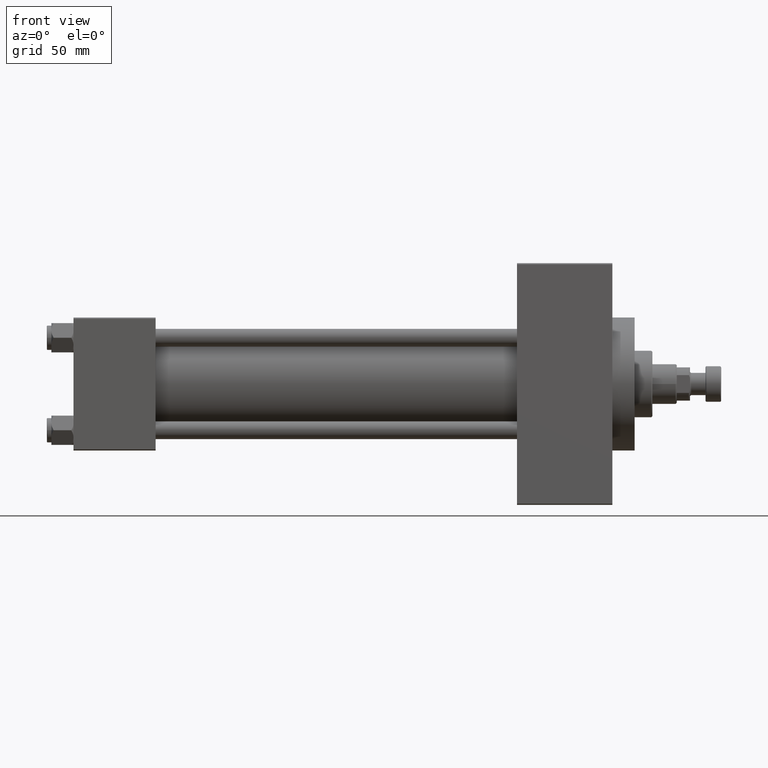
[diagram: clean part render]
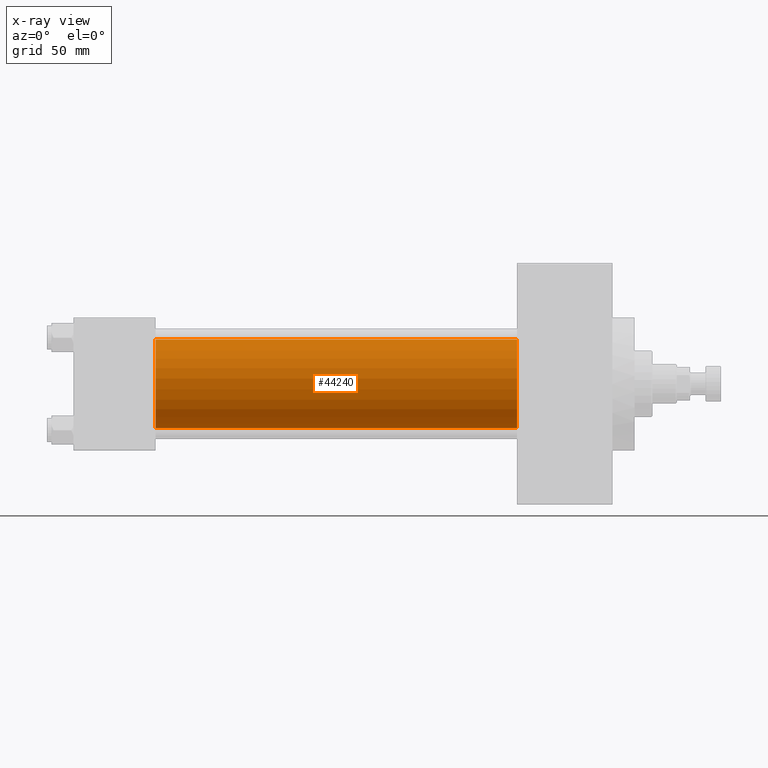
[diagram: x-ray — body ghosted, one internal face saturated and labeled with its STEP entity id]
A machine part, front view, then the same camera in x-ray: the body is ghosted and one INTERNAL B-rep face — a face not visible from any outside direction — is saturated and labeled: STEP entity #44240.
In plain terms, the highlighted cylindrical surface (partial cylindrical patch) has radius 20 mm, axis along (-1, -0, -0).
Its self-contained STEP definition (entity closure, byte-faithful):
#2199 = DIRECTION ( 'NONE',  ( 0.000000000000000000, 0.000000000000000000, -1.000000000000000000 ) ) ;
#2868 = ORIENTED_EDGE ( 'NONE', *, *, #6392, .F. ) ;
#5052 = CARTESIAN_POINT ( 'NONE',  ( 200.0000000000000000, -2.602085213965210642E-15, 20.00000000000000000 ) ) ;
#5986 = AXIS2_PLACEMENT_3D ( 'NONE', #25240, #36804, #41341 ) ;
#6234 = CYLINDRICAL_SURFACE ( 'NONE', #45021, 20.00000000000000000 ) ;
#6392 = EDGE_CURVE ( 'NONE', #13518, #24975, #49223, .T. ) ;
#6979 = DIRECTION ( 'NONE',  ( 0.000000000000000000, 0.000000000000000000, 1.000000000000000000 ) ) ;
#10748 = CARTESIAN_POINT ( 'NONE',  ( 200.0000000000000000, -2.602085213965210642E-15, 0.000000000000000000 ) ) ;
#10993 = DIRECTION ( 'NONE',  ( -1.000000000000000000, -0.000000000000000000, -0.000000000000000000 ) ) ;
#11115 = AXIS2_PLACEMENT_3D ( 'NONE', #25544, #32600, #2199 ) ;
#11920 = CARTESIAN_POINT ( 'NONE',  ( 37.00000000000000000, -1.527916156705042519E-16, -20.00000000000000000 ) ) ;
#12847 = CARTESIAN_POINT ( 'NONE',  ( 37.00000000000000000, -2.602085213965210642E-15, 20.00000000000000000 ) ) ;
#13518 = VERTEX_POINT ( 'NONE', #5052 ) ;
#17259 = EDGE_CURVE ( 'NONE', #13518, #45228, #34415, .T. ) ;
#17536 = DIRECTION ( 'NONE',  ( -1.000000000000000000, -0.000000000000000000, -0.000000000000000000 ) ) ;
#19446 = EDGE_CURVE ( 'NONE', #45228, #42561, #39835, .T. ) ;
#24725 = DIRECTION ( 'NONE',  ( -1.000000000000000000, -0.000000000000000000, -0.000000000000000000 ) ) ;
#24768 = CARTESIAN_POINT ( 'NONE',  ( 200.0000000000000000, -1.527916156705042519E-16, -20.00000000000000000 ) ) ;
#24975 = VERTEX_POINT ( 'NONE', #12847 ) ;
#25240 = CARTESIAN_POINT ( 'NONE',  ( 37.00000000000000000, -2.602085213965210642E-15, 0.000000000000000000 ) ) ;
#25544 = CARTESIAN_POINT ( 'NONE',  ( 200.0000000000000000, -2.602085213965210642E-15, 0.000000000000000000 ) ) ;
#29354 = FACE_OUTER_BOUND ( 'NONE', #37081, .T. ) ;
#32600 = DIRECTION ( 'NONE',  ( 1.000000000000000000, 0.000000000000000000, 0.000000000000000000 ) ) ;
#33883 = VECTOR ( 'NONE', #10993, 1000.000000000000000 ) ;
#34415 = CIRCLE ( 'NONE', #11115, 20.00000000000000000 ) ;
#36804 = DIRECTION ( 'NONE',  ( 1.000000000000000000, 0.000000000000000000, 0.000000000000000000 ) ) ;
#36881 = VECTOR ( 'NONE', #24725, 1000.000000000000000 ) ;
#37081 = EDGE_LOOP ( 'NONE', ( #41151, #47730, #45526, #2868 ) ) ;
#38586 = EDGE_CURVE ( 'NONE', #24975, #42561, #47759, .T. ) ;
#39835 = LINE ( 'NONE', #48126, #36881 ) ;
#41151 = ORIENTED_EDGE ( 'NONE', *, *, #17259, .T. ) ;
#41341 = DIRECTION ( 'NONE',  ( 0.000000000000000000, 0.000000000000000000, -1.000000000000000000 ) ) ;
#41669 = CARTESIAN_POINT ( 'NONE',  ( 200.0000000000000000, -2.602085213965210642E-15, 20.00000000000000000 ) ) ;
#42561 = VERTEX_POINT ( 'NONE', #11920 ) ;
#44240 = ADVANCED_FACE ( 'NONE', ( #29354 ), #6234, .F. ) ;
#45021 = AXIS2_PLACEMENT_3D ( 'NONE', #10748, #17536, #6979 ) ;
#45228 = VERTEX_POINT ( 'NONE', #24768 ) ;
#45526 = ORIENTED_EDGE ( 'NONE', *, *, #38586, .F. ) ;
#47730 = ORIENTED_EDGE ( 'NONE', *, *, #19446, .T. ) ;
#47759 = CIRCLE ( 'NONE', #5986, 20.00000000000000000 ) ;
#48126 = CARTESIAN_POINT ( 'NONE',  ( 200.0000000000000000, -1.527916156705042519E-16, -20.00000000000000000 ) ) ;
#49223 = LINE ( 'NONE', #41669, #33883 ) ;